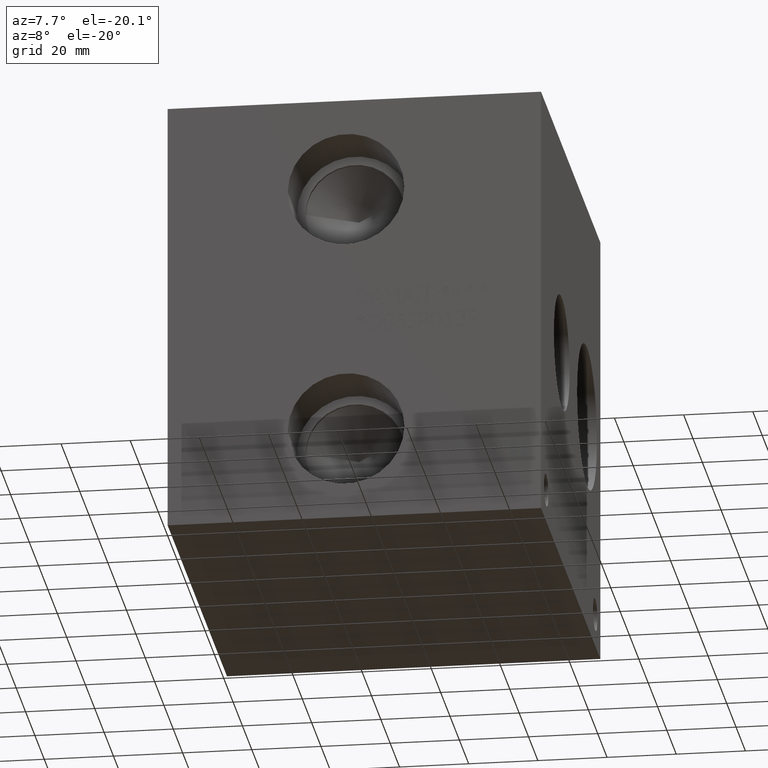
[diagram: clean part render]
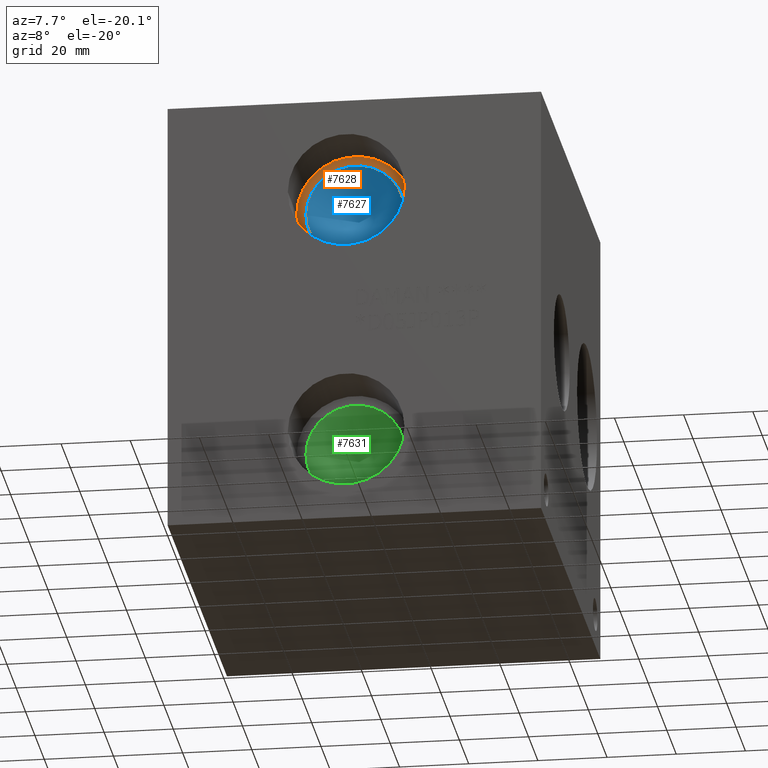
[diagram: same view with three faces highlighted in distinct colors, each labeled with its STEP entity id]
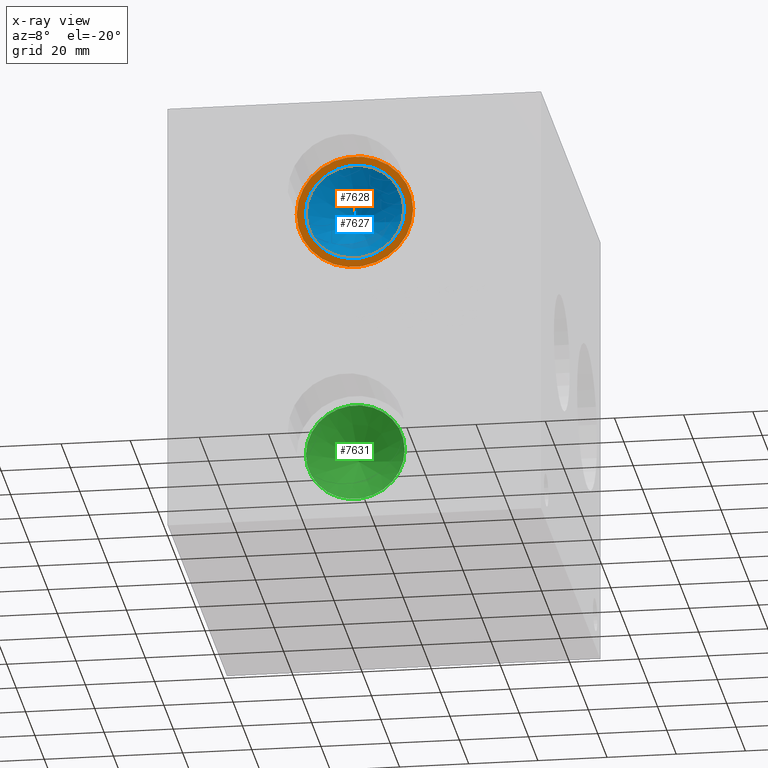
[diagram: x-ray of the same camera — body ghosted, the three highlighted faces saturated]
A machine part, auxiliary view with three faces highlighted in distinct colors.
The next image is the same camera in x-ray (body ghosted, the three faces saturated) — at least one of them is partly hidden behind the body in this view.
Their STEP definitions:

[orange] entity #7628 — the highlighted planar face has unit normal (0, -1, 0).
#148=CIRCLE('',#8019,16.8529);
#149=CIRCLE('',#8020,16.8529);
#150=CIRCLE('',#8021,14.2875);
#221=FACE_BOUND('',#1271,.T.);
#474=PLANE('',#8018);
#845=FACE_OUTER_BOUND('',#1270,.T.);
#1270=EDGE_LOOP('',(#6705,#6706));
#1271=EDGE_LOOP('',(#6707));
#3674=VERTEX_POINT('',#12901);
#3675=VERTEX_POINT('',#12902);
#3676=VERTEX_POINT('',#12905);
#4707=EDGE_CURVE('',#3674,#3675,#148,.T.);
#4708=EDGE_CURVE('',#3675,#3674,#149,.T.);
#4709=EDGE_CURVE('',#3676,#3676,#150,.T.);
#6705=ORIENTED_EDGE('',*,*,#4707,.T.);
#6706=ORIENTED_EDGE('',*,*,#4708,.T.);
#6707=ORIENTED_EDGE('',*,*,#4709,.F.);
#7628=ADVANCED_FACE('',(#845,#221),#474,.T.);
#8018=AXIS2_PLACEMENT_3D('',#12900,#9497,#9498);
#8019=AXIS2_PLACEMENT_3D('',#12903,#9499,#9500);
#8020=AXIS2_PLACEMENT_3D('',#12904,#9501,#9502);
#8021=AXIS2_PLACEMENT_3D('',#12906,#9503,#9504);
#9497=DIRECTION('center_axis',(0.,-1.,0.));
#9498=DIRECTION('ref_axis',(1.,0.,0.));
#9499=DIRECTION('center_axis',(0.,-1.,0.));
#9500=DIRECTION('ref_axis',(1.,0.,0.));
#9501=DIRECTION('center_axis',(0.,-1.,0.));
#9502=DIRECTION('ref_axis',(1.,0.,0.));
#9503=DIRECTION('center_axis',(0.,-1.,0.));
#9504=DIRECTION('ref_axis',(1.,0.,0.));
#12900=CARTESIAN_POINT('Origin',(51.5874,18.9992,99.9998));
#12901=CARTESIAN_POINT('',(68.4403,18.9992,99.9998));
#12902=CARTESIAN_POINT('',(34.7345,18.9992,99.9998));
#12903=CARTESIAN_POINT('Origin',(51.5874,18.9992,99.9998));
#12904=CARTESIAN_POINT('Origin',(51.5874,18.9992,99.9998));
#12905=CARTESIAN_POINT('',(37.2999,18.9992,99.9998));
#12906=CARTESIAN_POINT('Origin',(51.5874,18.9992,99.9998));

[blue] entity #7627 — the highlighted conical surface has half-angle 60 deg.
#60=CONICAL_SURFACE('',#8015,7.14375,1.0471975511966);
#146=CIRCLE('',#8016,14.2875);
#147=CIRCLE('',#8017,14.2875);
#844=FACE_OUTER_BOUND('',#1269,.T.);
#1269=EDGE_LOOP('',(#6701,#6702,#6703,#6704));
#2039=LINE('',#12898,#2782);
#2782=VECTOR('',#9494,7.14375);
#3671=VERTEX_POINT('',#12894);
#3672=VERTEX_POINT('',#12895);
#3673=VERTEX_POINT('',#12897);
#4704=EDGE_CURVE('',#3671,#3672,#146,.T.);
#4705=EDGE_CURVE('',#3672,#3673,#2039,.T.);
#4706=EDGE_CURVE('',#3672,#3671,#147,.T.);
#6701=ORIENTED_EDGE('',*,*,#4704,.T.);
#6702=ORIENTED_EDGE('',*,*,#4705,.T.);
#6703=ORIENTED_EDGE('',*,*,#4705,.F.);
#6704=ORIENTED_EDGE('',*,*,#4706,.T.);
#7627=ADVANCED_FACE('',(#844),#60,.F.);
#8015=AXIS2_PLACEMENT_3D('',#12893,#9490,#9491);
#8016=AXIS2_PLACEMENT_3D('',#12896,#9492,#9493);
#8017=AXIS2_PLACEMENT_3D('',#12899,#9495,#9496);
#9490=DIRECTION('center_axis',(0.,-1.,0.));
#9491=DIRECTION('ref_axis',(1.,0.,0.));
#9492=DIRECTION('center_axis',(0.,-1.,0.));
#9493=DIRECTION('ref_axis',(1.,0.,0.));
#9494=DIRECTION('',(0.866025403784438,0.5,1.06057523872491E-16));
#9495=DIRECTION('center_axis',(0.,-1.,0.));
#9496=DIRECTION('ref_axis',(1.,0.,0.));
#12893=CARTESIAN_POINT('Origin',(51.5874,23.9485359855234,99.9998));
#12894=CARTESIAN_POINT('',(65.8749,19.82409,99.9998));
#12895=CARTESIAN_POINT('',(37.2999,19.82409,99.9998));
#12896=CARTESIAN_POINT('Origin',(51.5874,19.82409,99.9998));
#12897=CARTESIAN_POINT('',(51.5874,28.0729819710468,99.9998));
#12898=CARTESIAN_POINT('',(44.44365,23.9485359855234,99.9998));
#12899=CARTESIAN_POINT('Origin',(51.5874,19.82409,99.9998));

[green] entity #7631 — the highlighted conical surface has half-angle 60 deg.
#61=CONICAL_SURFACE('',#8024,7.14375,1.0471975511966);
#151=CIRCLE('',#8025,14.2875);
#152=CIRCLE('',#8026,14.2875);
#848=FACE_OUTER_BOUND('',#1274,.T.);
#1274=EDGE_LOOP('',(#6719,#6720,#6721,#6722));
#2042=LINE('',#12916,#2785);
#2785=VECTOR('',#9515,7.14375);
#3677=VERTEX_POINT('',#12912);
#3678=VERTEX_POINT('',#12913);
#3679=VERTEX_POINT('',#12915);
#4712=EDGE_CURVE('',#3677,#3678,#151,.T.);
#4713=EDGE_CURVE('',#3678,#3679,#2042,.T.);
#4714=EDGE_CURVE('',#3678,#3677,#152,.T.);
#6719=ORIENTED_EDGE('',*,*,#4712,.T.);
#6720=ORIENTED_EDGE('',*,*,#4713,.T.);
#6721=ORIENTED_EDGE('',*,*,#4713,.F.);
#6722=ORIENTED_EDGE('',*,*,#4714,.T.);
#7631=ADVANCED_FACE('',(#848),#61,.F.);
#8024=AXIS2_PLACEMENT_3D('',#12911,#9511,#9512);
#8025=AXIS2_PLACEMENT_3D('',#12914,#9513,#9514);
#8026=AXIS2_PLACEMENT_3D('',#12917,#9516,#9517);
#9511=DIRECTION('center_axis',(0.,-1.,0.));
#9512=DIRECTION('ref_axis',(1.,0.,0.));
#9513=DIRECTION('center_axis',(0.,-1.,0.));
#9514=DIRECTION('ref_axis',(1.,0.,0.));
#9515=DIRECTION('',(0.866025403784438,0.5,1.06057523872491E-16));
#9516=DIRECTION('center_axis',(0.,-1.,0.));
#9517=DIRECTION('ref_axis',(1.,0.,0.));
#12911=CARTESIAN_POINT('Origin',(51.5874,23.9485359855234,26.9748));
#12912=CARTESIAN_POINT('',(65.8749,19.82409,26.9748));
#12913=CARTESIAN_POINT('',(37.2999,19.82409,26.9748));
#12914=CARTESIAN_POINT('Origin',(51.5874,19.82409,26.9748));
#12915=CARTESIAN_POINT('',(51.5874,28.0729819710468,26.9748));
#12916=CARTESIAN_POINT('',(44.44365,23.9485359855234,26.9748));
#12917=CARTESIAN_POINT('Origin',(51.5874,19.82409,26.9748));